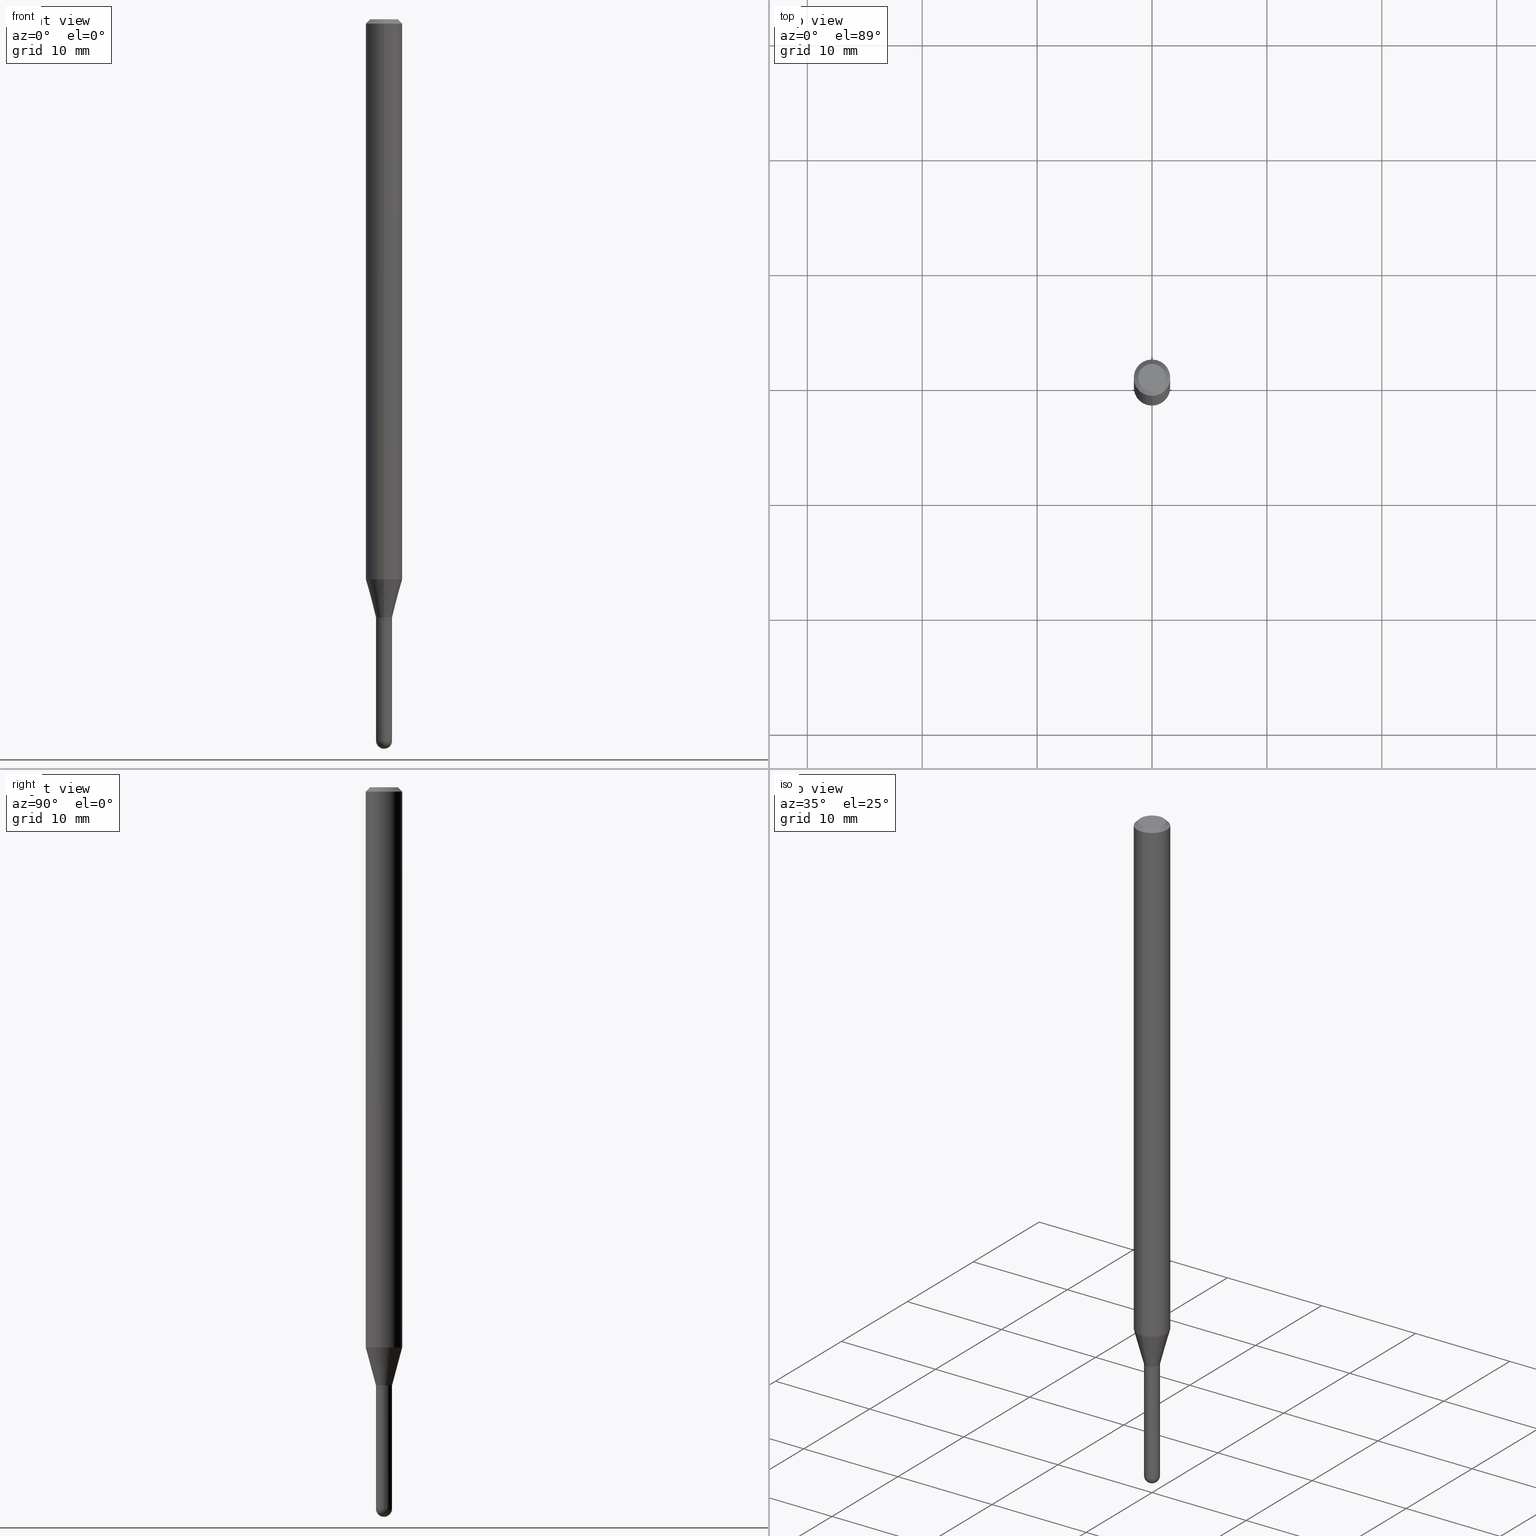
[diagram: canonical four-view strip — front | top / right | iso, engineering-drawing reading convention]
A machine part, canonical four-view strip (front | top / right | iso — engineering-drawing reading convention). The complete STEP part file that produces these views, byte-faithful:
ISO-10303-21;
HEADER;
FILE_DESCRIPTION (( 'STEP AP203' ),
    '1' );
FILE_NAME ('00990.STEP',
    '2024-03-07T19:31:57',
    ( '' ),
    ( '' ),
    'SwSTEP 2.0',
    'SolidWorks 2023',
    '' );
FILE_SCHEMA (( 'CONFIG_CONTROL_DESIGN' ));
ENDSEC;

DATA;
#1 = DIRECTION ( 'NONE',  ( -2.445461654666002137E-29, 3.491491580225585399E-15, 1.000000000000000000 ) ) ;
#2 = FACE_OUTER_BOUND ( 'NONE', #259, .T. ) ;
#3 = CARTESIAN_POINT ( 'NONE',  ( 0.02750000000000000014, -1.920314736363723444E-16, 1.340948613343882413E-30 ) ) ;
#4 = EDGE_CURVE ( 'NONE', #389, #17, #346, .T. ) ;
#5 = AXIS2_PLACEMENT_3D ( 'NONE', #506, #430, #512 ) ;
#6 = CONICAL_SURFACE ( 'NONE', #297, 0.06250000000000000000, 0.7853981633974483900 ) ;
#7 = DIRECTION ( 'NONE',  ( -6.982962677686265922E-15, -1.000000000000000000, 3.491491580225585005E-15 ) ) ;
#8 = CIRCLE ( 'NONE', #231, 0.02750000000000000014 ) ;
#9 = ORIENTED_EDGE ( 'NONE', *, *, #313, .F. ) ;
#10 = DIRECTION ( 'NONE',  ( -2.445461654666002137E-29, 3.491491580225585399E-15, 1.000000000000000000 ) ) ;
#11 = DIRECTION ( 'NONE',  ( 6.982962677686265922E-15, 1.000000000000000000, -3.491491580225585005E-15 ) ) ;
#12 = EDGE_CURVE ( 'NONE', #130, #22, #201, .T. ) ;
#13 = FACE_OUTER_BOUND ( 'NONE', #257, .T. ) ;
#14 = LINE ( 'NONE', #407, #180 ) ;
#15 = EDGE_LOOP ( 'NONE', ( #220, #420, #274, #495 ) ) ;
#16 = DIRECTION ( 'NONE',  ( 6.982962677686265922E-15, 1.000000000000000000, 0.000000000000000000 ) ) ;
#17 = VERTEX_POINT ( 'NONE', #269 ) ;
#18 = AXIS2_PLACEMENT_3D ( 'NONE', #472, #323, #279 ) ;
#19 = APPROVAL_PERSON_ORGANIZATION ( #159, #408, #508 ) ;
#20 = CARTESIAN_POINT ( 'NONE',  ( 0.000000000000000000, 0.000000000000000000, 0.000000000000000000 ) ) ;
#21 = CALENDAR_DATE ( 2024, 7, 3 ) ;
#22 = VERTEX_POINT ( 'NONE', #273 ) ;
#23 = DIRECTION ( 'NONE',  ( -1.000000000000000000, 7.105427357601001070E-15, -4.926315508542082329E-29 ) ) ;
#24 = EDGE_CURVE ( 'NONE', #290, #87, #341, .T. ) ;
#25 = VERTEX_POINT ( 'NONE', #310 ) ;
#26 = LINE ( 'NONE', #66, #394 ) ;
#27 = LOCAL_TIME ( 14, 31, 57.00000000000000000, #363 ) ;
#28 = VERTEX_POINT ( 'NONE', #120 ) ;
#29 = VERTEX_POINT ( 'NONE', #45 ) ;
#30 = CARTESIAN_POINT ( 'NONE',  ( 4.440892098501092576E-16, 0.06249999999999326927, -1.919378221735088985 ) ) ;
#31 = ADVANCED_FACE ( 'NONE', ( #160 ), #342, .T. ) ;
#32 = UNCERTAINTY_MEASURE_WITH_UNIT (LENGTH_MEASURE( 1.000000000000000082E-05 ), #379, 'distance_accuracy_value', 'NONE');
#33 = EDGE_CURVE ( 'NONE', #144, #500, #44, .T. ) ;
#34 = CARTESIAN_POINT ( 'NONE',  ( 3.668192481999005413E-31, -5.237237370338381057E-17, -0.01500000000000000812 ) ) ;
#35 = APPLICATION_CONTEXT ( 'configuration controlled 3d designs of mechanical parts and assemblies' ) ;
#36 = PRODUCT_DEFINITION_SHAPE ( 'NONE', 'NONE',  #338 ) ;
#37 = AXIS2_PLACEMENT_3D ( 'NONE', #133, #441, #93 ) ;
#38 = CONICAL_SURFACE ( 'NONE', #78, 0.06250000000000000000, 0.7853981633974483900 ) ;
#39 = CALENDAR_DATE ( 2024, 7, 3 ) ;
#40 = DIRECTION ( 'NONE',  ( -2.445468806185136597E-29, 3.491481338843145583E-15, 1.000000000000000000 ) ) ;
#41 = ORIENTED_EDGE ( 'NONE', *, *, #501, .T. ) ;
#42 = DIRECTION ( 'NONE',  ( -4.937700262164674260E-15, -0.7071067811865632269, 0.7071067811865319186 ) ) ;
#43 = VECTOR ( 'NONE', #397, 39.37007874015748143 ) ;
#44 = CIRCLE ( 'NONE', #334, 0.06250000000000000000 ) ;
#45 = CARTESIAN_POINT ( 'NONE',  ( 3.840629472727447874E-16, 0.04749999999999999362, -1.747056831868805136E-16 ) ) ;
#46 = APPROVAL ( #196, 'UNSPECIFIED' ) ;
#47 = CARTESIAN_POINT ( 'NONE',  ( 5.013196392065305278E-29, -7.157557739462450364E-15, -2.050000000000000266 ) ) ;
#48 = CARTESIAN_POINT ( 'NONE',  ( 5.036428277784631998E-29, -7.190726909474592369E-15, -2.059500000000000330 ) ) ;
#49 = DIRECTION ( 'NONE',  ( 2.445461654666002137E-29, -3.491491580225585399E-15, -1.000000000000000000 ) ) ;
#50 = MANIFOLD_SOLID_BREP ( 'Body-Move/Copy2[1]', #187 ) ;
#51 = AXIS2_PLACEMENT_3D ( 'NONE', #102, #329, #11 ) ;
#52 = CARTESIAN_POINT ( 'NONE',  ( 5.013196392065305278E-29, -7.157557739462450364E-15, -2.050000000000000266 ) ) ;
#53 = CARTESIAN_POINT ( 'NONE',  ( -1.920314736363698792E-16, -0.02749999999999964972, 9.601601845620238313E-17 ) ) ;
#54 = ORIENTED_EDGE ( 'NONE', *, *, #303, .T. ) ;
#55 = CC_DESIGN_PERSON_AND_ORGANIZATION_ASSIGNMENT ( #354, #217, ( #422 ) ) ;
#56 = LINE ( 'NONE', #53, #263 ) ;
#57 = ORIENTED_EDGE ( 'NONE', *, *, #296, .T. ) ;
#58 = DIRECTION ( 'NONE',  ( -6.982962677686266711E-15, -1.000000000000000000, 0.000000000000000000 ) ) ;
#59 = EDGE_LOOP ( 'NONE', ( #490, #41, #427, #107 ) ) ;
#60 = ORIENTED_EDGE ( 'NONE', *, *, #143, .T. ) ;
#61 = FACE_OUTER_BOUND ( 'NONE', #167, .T. ) ;
#62 = LOCAL_TIME ( 14, 31, 57.00000000000000000, #428 ) ;
#63 = EDGE_LOOP ( 'NONE', ( #482, #456 ) ) ;
#64 = EDGE_CURVE ( 'NONE', #25, #300, #493, .T. ) ;
#65 = DIRECTION ( 'NONE',  ( -1.807323732225330139E-15, -0.2588190451025181860, 0.9659258262890689783 ) ) ;
#66 = CARTESIAN_POINT ( 'NONE',  ( -1.920314736363197372E-16, -0.02750000000000681066, -2.050000000000000266 ) ) ;
#67 = ORIENTED_EDGE ( 'NONE', *, *, #183, .F. ) ;
#68 =( LENGTH_UNIT ( ) NAMED_UNIT ( * ) SI_UNIT ( $, .METRE. ) );
#69 = MANIFOLD_SOLID_BREP ( 'Body-Move/Copy2[2]', #366 ) ;
#70 = DIRECTION ( 'NONE',  ( -2.445461654666002137E-29, 3.491491580225585399E-15, 1.000000000000000000 ) ) ;
#71 = ADVANCED_FACE ( 'NONE', ( #163 ), #509, .T. ) ;
#72 = CIRCLE ( 'NONE', #505, 0.02750000000000000014 ) ;
#73 = ADVANCED_FACE ( 'NONE', ( #169 ), #403, .F. ) ;
#74 = ORIENTED_EDGE ( 'NONE', *, *, #218, .T. ) ;
#75 = DIRECTION ( 'NONE',  ( -6.982962677686266711E-15, -1.000000000000000000, 3.491491580225585793E-15 ) ) ;
#76 = CALENDAR_DATE ( 2024, 7, 3 ) ;
#77 = CIRCLE ( 'NONE', #148, 0.06250000000000000000 ) ;
#78 = AXIS2_PLACEMENT_3D ( 'NONE', #34, #371, #331 ) ;
#79 = APPROVAL_ROLE ( '' ) ;
#80 = DIRECTION ( 'NONE',  ( -6.982962677686265133E-15, -1.000000000000000000, 0.000000000000000000 ) ) ;
#81 = PERSON_AND_ORGANIZATION ( #433, #487 ) ;
#82 = EDGE_LOOP ( 'NONE', ( #412, #142, #118, #90 ) ) ;
#83 = ADVANCED_FACE ( 'NONE', ( #480 ), #305, .T. ) ;
#84 = CC_DESIGN_DATE_AND_TIME_ASSIGNMENT ( #153, #372, ( #422 ) ) ;
#85 = VECTOR ( 'NONE', #406, 39.37007874015748143 ) ;
#86 = AXIS2_PLACEMENT_3D ( 'NONE', #104, #190, #228 ) ;
#87 = VERTEX_POINT ( 'NONE', #446 ) ;
#88 = CARTESIAN_POINT ( 'NONE',  ( -4.364351673553448308E-16, -0.06250000000000671685, -1.919378221735088319 ) ) ;
#89 = DIRECTION ( 'NONE',  ( -6.982962677686266711E-15, -1.000000000000000000, 3.491491580225585793E-15 ) ) ;
#90 = ORIENTED_EDGE ( 'NONE', *, *, #302, .F. ) ;
#91 = CYLINDRICAL_SURFACE ( 'NONE', #286, 0.02750000000000000014 ) ;
#92 = DIRECTION ( 'NONE',  ( -2.445468806185136877E-29, 3.491481338843145188E-15, 1.000000000000000000 ) ) ;
#93 = DIRECTION ( 'NONE',  ( -6.982962677686266711E-15, -1.000000000000000000, 3.491491580225585793E-15 ) ) ;
#94 = DIRECTION ( 'NONE',  ( -2.445461654666002137E-29, 3.491491580225585399E-15, 1.000000000000000000 ) ) ;
#95 = DIRECTION ( 'NONE',  ( 1.000000000000000000, -6.982962677686279332E-15, 0.000000000000000000 ) ) ;
#96 = CARTESIAN_POINT ( 'NONE',  ( 3.668192481999005413E-31, -5.237237370338381057E-17, -0.01500000000000000812 ) ) ;
#97 = VECTOR ( 'NONE', #502, 39.37007874015748143 ) ;
#98 = CARTESIAN_POINT ( 'NONE',  ( 1.936228954946764066E-16, 0.02699999999999280753, -2.060000000000000053 ) ) ;
#99 = CARTESIAN_POINT ( 'NONE',  ( -1.885399922974788009E-16, -0.02700000000000719186, -2.060000000000000053 ) ) ;
#100 = VERTEX_POINT ( 'NONE', #435 ) ;
#101 = LENGTH_MEASURE_WITH_UNIT ( LENGTH_MEASURE( 0.02539999999999999897 ), #68 );
#102 = CARTESIAN_POINT ( 'NONE',  ( 3.316907271900976096E-16, 0.04749999999999999362, -1.702757666237978953E-16 ) ) ;
#103 = ADVANCED_FACE ( 'NONE', ( #314 ), #254, .T. ) ;
#104 = CARTESIAN_POINT ( 'NONE',  ( 5.036428277784631998E-29, -7.190726909474592369E-15, -2.059500000000000330 ) ) ;
#105 = AXIS2_PLACEMENT_3D ( 'NONE', #255, #243, #215 ) ;
#106 = APPROVAL_PERSON_ORGANIZATION ( #198, #46, #79 ) ;
#107 = ORIENTED_EDGE ( 'NONE', *, *, #24, .F. ) ;
#108 = LINE ( 'NONE', #375, #97 ) ;
#109 = SHAPE_DEFINITION_REPRESENTATION ( #36, #221 ) ;
#110 = CYLINDRICAL_SURFACE ( 'NONE', #368, 0.06250000000000000000 ) ;
#111 = EDGE_CURVE ( 'NONE', #504, #380, #466, .T. ) ;
#112 = DIRECTION ( 'NONE',  ( 1.000000000000000000, -6.982962677686279332E-15, 0.000000000000000000 ) ) ;
#113 = AXIS2_PLACEMENT_3D ( 'NONE', #48, #319, #479 ) ;
#114 = AXIS2_PLACEMENT_3D ( 'NONE', #492, #458, #188 ) ;
#115 = DIRECTION ( 'NONE',  ( 0.000000000000000000, 0.000000000000000000, 1.000000000000000000 ) ) ;
#116 = APPROVAL_STATUS ( 'not_yet_approved' ) ;
#117 = DIRECTION ( 'NONE',  ( -2.445461654666002137E-29, 3.491491580225585399E-15, 1.000000000000000000 ) ) ;
#118 = ORIENTED_EDGE ( 'NONE', *, *, #332, .F. ) ;
#119 = ADVANCED_FACE ( 'NONE', ( #13 ), #91, .T. ) ;
#120 = CARTESIAN_POINT ( 'NONE',  ( 6.112496161815219763E-29, -8.730387236456691573E-15, -2.500000000000000000 ) ) ;
#121 = VECTOR ( 'NONE', #330, 39.37007874015748143 ) ;
#122 = AXIS2_PLACEMENT_3D ( 'NONE', #335, #455, #75 ) ;
#123 = PERSON_AND_ORGANIZATION ( #433, #487 ) ;
#124 = ORIENTED_EDGE ( 'NONE', *, *, #370, .T. ) ;
#125 = ADVANCED_FACE ( 'NONE', ( #2 ), #360, .F. ) ;
#126 = DIRECTION ( 'NONE',  ( 5.024295867788190974E-15, 0.7071067811865681119, 0.7071067811865270336 ) ) ;
#127 = ADVANCED_FACE ( 'NONE', ( #173 ), #311, .T. ) ;
#128 = DIRECTION ( 'NONE',  ( -6.982962677686265922E-15, -1.000000000000000000, 3.483106191921935554E-15 ) ) ;
#129 = AXIS2_PLACEMENT_3D ( 'NONE', #237, #40, #385 ) ;
#130 = VERTEX_POINT ( 'NONE', #98 ) ;
#131 = CARTESIAN_POINT ( 'NONE',  ( 4.693765842054179356E-29, -6.701492900456418580E-15, -1.919378221735088763 ) ) ;
#132 = DIRECTION ( 'NONE',  ( -2.445461654666002137E-29, 3.491491580225585399E-15, 1.000000000000000000 ) ) ;
#133 = CARTESIAN_POINT ( 'NONE',  ( 0.000000000000000000, 0.000000000000000000, 0.000000000000000000 ) ) ;
#134 = DIRECTION ( 'NONE',  ( -1.000000000000000000, 6.982962677686265922E-15, -4.883557194083112901E-29 ) ) ;
#135 = LINE ( 'NONE', #284, #121 ) ;
#136 = CARTESIAN_POINT ( 'NONE',  ( 3.197442310920924528E-16, 0.02749999999999249226, -2.050000000000000266 ) ) ;
#137 = EDGE_LOOP ( 'NONE', ( #57, #369 ) ) ;
#138 = AXIS2_PLACEMENT_3D ( 'NONE', #214, #443, #7 ) ;
#139 = DIRECTION ( 'NONE',  ( -1.000000000000000000, 6.982962677686265922E-15, -4.876176775795935793E-29 ) ) ;
#140 = LINE ( 'NONE', #289, #43 ) ;
#141 = CIRCLE ( 'NONE', #122, 0.04749999999999999362 ) ;
#142 = ORIENTED_EDGE ( 'NONE', *, *, #349, .T. ) ;
#143 = EDGE_CURVE ( 'NONE', #144, #504, #247, .T. ) ;
#144 = VERTEX_POINT ( 'NONE', #88 ) ;
#145 = CARTESIAN_POINT ( 'NONE',  ( 6.046421623292748621E-29, -8.632687610289675147E-15, -2.472499999999999254 ) ) ;
#146 = PLANE ( 'NONE',  #51 ) ;
#147 = ORIENTED_EDGE ( 'NONE', *, *, #390, .F. ) ;
#148 = AXIS2_PLACEMENT_3D ( 'NONE', #96, #485, #364 ) ;
#149 = AXIS2_PLACEMENT_3D ( 'NONE', #260, #70, #496 ) ;
#150 = CC_DESIGN_PERSON_AND_ORGANIZATION_ASSIGNMENT ( #271, #431, ( #511 ) ) ;
#151 = FACE_OUTER_BOUND ( 'NONE', #15, .T. ) ;
#152 = SPHERICAL_SURFACE ( 'NONE', #203, 0.02750000000000009381 ) ;
#153 = DATE_AND_TIME ( #450, #182 ) ;
#154 = ORIENTED_EDGE ( 'NONE', *, *, #313, .T. ) ;
#155 = ORIENTED_EDGE ( 'NONE', *, *, #111, .F. ) ;
#156 = DESIGN_CONTEXT ( 'detailed design', #35, 'design' ) ;
#157 = DIRECTION ( 'NONE',  ( -2.445461654666002137E-29, 3.491491580225585399E-15, 1.000000000000000000 ) ) ;
#158 = DIRECTION ( 'NONE',  ( -2.445461654666002137E-29, 3.491491580225585399E-15, 1.000000000000000000 ) ) ;
#159 = PERSON_AND_ORGANIZATION ( #433, #487 ) ;
#160 = FACE_OUTER_BOUND ( 'NONE', #213, .T. ) ;
#161 = EDGE_LOOP ( 'NONE', ( #498, #344, #60, #147 ) ) ;
#162 = CALENDAR_DATE ( 2024, 7, 3 ) ;
#163 = FACE_OUTER_BOUND ( 'NONE', #232, .T. ) ;
#164 = ORIENTED_EDGE ( 'NONE', *, *, #64, .F. ) ;
#165 = ORIENTED_EDGE ( 'NONE', *, *, #417, .T. ) ;
#166 = EDGE_CURVE ( 'NONE', #500, #144, #276, .T. ) ;
#167 = EDGE_LOOP ( 'NONE', ( #318, #172, #336, #387 ) ) ;
#168 = CARTESIAN_POINT ( 'NONE',  ( -4.364351673553916201E-16, -0.06250000000000000000, 2.182182237640990874E-16 ) ) ;
#169 = FACE_OUTER_BOUND ( 'NONE', #63, .T. ) ;
#170 = DIRECTION ( 'NONE',  ( -2.445461654666002417E-29, 3.491491580225585005E-15, 1.000000000000000000 ) ) ;
#171 = AXIS2_PLACEMENT_3D ( 'NONE', #355, #438, #128 ) ;
#172 = ORIENTED_EDGE ( 'NONE', *, *, #391, .T. ) ;
#173 = FACE_OUTER_BOUND ( 'NONE', #227, .T. ) ;
#174 = CARTESIAN_POINT ( 'NONE',  ( -1.920314736363197372E-16, -0.02750000000000681066, -2.050000000000000266 ) ) ;
#175 = EDGE_LOOP ( 'NONE', ( #409, #246, #199, #339 ) ) ;
#176 = CARTESIAN_POINT ( 'NONE',  ( 0.000000000000000000, 0.000000000000000000, 0.000000000000000000 ) ) ;
#177 = CARTESIAN_POINT ( 'NONE',  ( 1.920314736364227082E-16, 0.02749999999999280798, -2.060000000000000053 ) ) ;
#178 = DIRECTION ( 'NONE',  ( 6.982962677686265922E-15, 1.000000000000000000, -3.483106191921935554E-15 ) ) ;
#179 = EDGE_LOOP ( 'NONE', ( #233, #507, #437, #67 ) ) ;
#180 = VECTOR ( 'NONE', #170, 39.37007874015748143 ) ;
#181 = EDGE_CURVE ( 'NONE', #377, #100, #72, .T. ) ;
#182 = LOCAL_TIME ( 14, 31, 57.00000000000000000, #291 ) ;
#183 = EDGE_CURVE ( 'NONE', #22, #17, #238, .T. ) ;
#184 = ORIENTED_EDGE ( 'NONE', *, *, #33, .T. ) ;
#185 = DIRECTION ( 'NONE',  ( 6.982962677686265922E-15, 1.000000000000000000, 0.000000000000000000 ) ) ;
#186 = ORIENTED_EDGE ( 'NONE', *, *, #33, .F. ) ;
#187 = CLOSED_SHELL ( 'NONE', ( #119, #376, #125, #440, #71 ) ) ;
#188 = DIRECTION ( 'NONE',  ( -6.982962677686266711E-15, -1.000000000000000000, 0.000000000000000000 ) ) ;
#189 = ORIENTED_EDGE ( 'NONE', *, *, #321, .F. ) ;
#190 = DIRECTION ( 'NONE',  ( -2.445461654666002137E-29, 3.491491580225585399E-15, 1.000000000000000000 ) ) ;
#191 = PERSON_AND_ORGANIZATION ( #433, #487 ) ;
#192 = PRODUCT_RELATED_PRODUCT_CATEGORY ( 'detail', '', ( #195 ) ) ;
#193 = ORIENTED_EDGE ( 'NONE', *, *, #64, .T. ) ;
#194 = COORDINATED_UNIVERSAL_TIME_OFFSET ( 5, 0, .BEHIND. ) ;
#195 = PRODUCT ( '00990', '00990', '', ( #463 ) ) ;
#196 = APPROVAL_STATUS ( 'not_yet_approved' ) ;
#197 = ADVANCED_FACE ( 'NONE', ( #312 ), #351, .T. ) ;
#198 = PERSON_AND_ORGANIZATION ( #433, #487 ) ;
#199 = ORIENTED_EDGE ( 'NONE', *, *, #111, .T. ) ;
#200 = CYLINDRICAL_SURFACE ( 'NONE', #357, 0.02749999999999964972 ) ;
#201 = LINE ( 'NONE', #393, #223 ) ;
#202 = CIRCLE ( 'NONE', #411, 0.02699999999999999969 ) ;
#203 = AXIS2_PLACEMENT_3D ( 'NONE', #423, #226, #261 ) ;
#204 = SECURITY_CLASSIFICATION_LEVEL ( 'unclassified' ) ;
#205 = CARTESIAN_POINT ( 'NONE',  ( 5.037651008611964246E-29, -7.192472655264704857E-15, -2.060000000000000053 ) ) ;
#206 = CARTESIAN_POINT ( 'NONE',  ( 5.013196392065305278E-29, -7.157557739462450364E-15, -2.050000000000000266 ) ) ;
#207 = EDGE_LOOP ( 'NONE', ( #328, #154, #186, #381 ) ) ;
#208 = AXIS2_PLACEMENT_3D ( 'NONE', #327, #489, #185 ) ;
#209 = CIRCLE ( 'NONE', #114, 0.02749999999999964972 ) ;
#210 = CARTESIAN_POINT ( 'NONE',  ( 5.037651008611964246E-29, -7.192472655264704857E-15, -2.060000000000000053 ) ) ;
#211 = CARTESIAN_POINT ( 'NONE',  ( -4.287811248607203282E-16, -0.06250000000000005551, -0.01499999999999979128 ) ) ;
#212 = ORIENTED_EDGE ( 'NONE', *, *, #425, .T. ) ;
#213 = EDGE_LOOP ( 'NONE', ( #497, #272, #415, #451 ) ) ;
#214 = CARTESIAN_POINT ( 'NONE',  ( 5.037651008611964246E-29, -7.192472655264704857E-15, -2.060000000000000053 ) ) ;
#215 = DIRECTION ( 'NONE',  ( 1.000000000000000000, -6.982962677686279332E-15, 0.000000000000000000 ) ) ;
#216 = EDGE_CURVE ( 'NONE', #130, #389, #202, .T. ) ;
#217 = PERSON_AND_ORGANIZATION_ROLE ( 'classification_officer' ) ;
#218 = EDGE_CURVE ( 'NONE', #87, #300, #135, .T. ) ;
#219 = FACE_OUTER_BOUND ( 'NONE', #224, .T. ) ;
#220 = ORIENTED_EDGE ( 'NONE', *, *, #349, .F. ) ;
#221 = ADVANCED_BREP_SHAPE_REPRESENTATION ( '00990', ( #50, #69, #445 ), #225 ) ;
#222 = DIRECTION ( 'NONE',  ( -6.982962677686266711E-15, -1.000000000000000000, 3.491491580225585793E-15 ) ) ;
#223 = VECTOR ( 'NONE', #126, 39.37007874015748143 ) ;
#224 = EDGE_LOOP ( 'NONE', ( #189, #229, #418, #345 ) ) ;
#225 =( GEOMETRIC_REPRESENTATION_CONTEXT ( 3 ) GLOBAL_UNCERTAINTY_ASSIGNED_CONTEXT ( ( #32 ) ) GLOBAL_UNIT_ASSIGNED_CONTEXT ( ( #379, #337, #301 ) ) REPRESENTATION_CONTEXT ( 'NONE', 'WORKASPACE' ) );
#226 = DIRECTION ( 'NONE',  ( -1.000000000000000000, 6.982962677686265922E-15, -4.883557194083112901E-29 ) ) ;
#227 = EDGE_LOOP ( 'NONE', ( #9, #165, #470, #471 ) ) ;
#228 = DIRECTION ( 'NONE',  ( -6.982962677686266711E-15, -1.000000000000000000, 0.000000000000000000 ) ) ;
#229 = ORIENTED_EDGE ( 'NONE', *, *, #296, .F. ) ;
#230 = AXIS2_PLACEMENT_3D ( 'NONE', #205, #158, #80 ) ;
#231 = AXIS2_PLACEMENT_3D ( 'NONE', #145, #452, #264 ) ;
#232 = EDGE_LOOP ( 'NONE', ( #478, #400, #359, #124, #309 ) ) ;
#233 = ORIENTED_EDGE ( 'NONE', *, *, #12, .F. ) ;
#234 = ADVANCED_FACE ( 'NONE', ( #151 ), #200, .T. ) ;
#235 = DATE_AND_TIME ( #76, #62 ) ;
#236 = VECTOR ( 'NONE', #42, 39.37007874015748143 ) ;
#237 = CARTESIAN_POINT ( 'NONE',  ( 5.037665740741381905E-29, -7.192451558016880271E-15, -2.060000000000000053 ) ) ;
#238 = CIRCLE ( 'NONE', #113, 0.02749999999999964972 ) ;
#239 = CC_DESIGN_PERSON_AND_ORGANIZATION_ASSIGNMENT ( #191, #308, ( #195 ) ) ;
#240 = PERSON_AND_ORGANIZATION_ROLE ( 'design_supplier' ) ;
#241 = CC_DESIGN_APPROVAL ( #384, ( #422 ) ) ;
#242 = CARTESIAN_POINT ( 'NONE',  ( 6.046421623292748621E-29, -8.632687610289675147E-15, -2.472499999999999254 ) ) ;
#243 = DIRECTION ( 'NONE',  ( -2.445468806185136597E-29, 3.491481338843145583E-15, 1.000000000000000000 ) ) ;
#244 = CC_DESIGN_DATE_AND_TIME_ASSIGNMENT ( #235, #383, ( #338 ) ) ;
#245 = DIRECTION ( 'NONE',  ( -6.982962677686265922E-15, -1.000000000000000000, 4.370956789862821150E-15 ) ) ;
#246 = ORIENTED_EDGE ( 'NONE', *, *, #321, .T. ) ;
#247 = LINE ( 'NONE', #168, #85 ) ;
#248 = EDGE_LOOP ( 'NONE', ( #184, #320, #155, #292 ) ) ;
#249 = AXIS2_PLACEMENT_3D ( 'NONE', #362, #398, #352 ) ;
#250 = CIRCLE ( 'NONE', #298, 0.02750000000000009381 ) ;
#251 = DIRECTION ( 'NONE',  ( 1.000000000000000000, -6.982962677686266711E-15, 4.876176775795935793E-29 ) ) ;
#252 = LINE ( 'NONE', #404, #316 ) ;
#253 = ADVANCED_FACE ( 'NONE', ( #488 ), #146, .F. ) ;
#254 = CYLINDRICAL_SURFACE ( 'NONE', #249, 0.06250000000000000000 ) ;
#255 = CARTESIAN_POINT ( 'NONE',  ( 5.037665740741381905E-29, -7.192451558016880271E-15, -2.060000000000000053 ) ) ;
#256 = DIRECTION ( 'NONE',  ( -2.445461654666002137E-29, 3.491491580225585399E-15, 1.000000000000000000 ) ) ;
#257 = EDGE_LOOP ( 'NONE', ( #473, #74, #164, #469, #212 ) ) ;
#258 = FACE_OUTER_BOUND ( 'NONE', #179, .T. ) ;
#259 = EDGE_LOOP ( 'NONE', ( #193, #54 ) ) ;
#260 = CARTESIAN_POINT ( 'NONE',  ( 5.037651008611964246E-29, -7.192472655264704857E-15, -2.060000000000000053 ) ) ;
#261 = DIRECTION ( 'NONE',  ( 6.982962677686265922E-15, 1.000000000000000000, 0.000000000000000000 ) ) ;
#262 = VERTEX_POINT ( 'NONE', #174 ) ;
#263 = VECTOR ( 'NONE', #361, 39.37007874015748143 ) ;
#264 = DIRECTION ( 'NONE',  ( 1.000000000000000000, -6.982962677686279332E-15, 0.000000000000000000 ) ) ;
#265 = CC_DESIGN_SECURITY_CLASSIFICATION ( #422, ( #511 ) ) ;
#266 = EDGE_CURVE ( 'NONE', #500, #380, #252, .T. ) ;
#267 = DIRECTION ( 'NONE',  ( 1.000000000000000000, 0.000000000000000000, 0.000000000000000000 ) ) ;
#268 = COORDINATED_UNIVERSAL_TIME_OFFSET ( 5, 0, .BEHIND. ) ;
#269 = CARTESIAN_POINT ( 'NONE',  ( -1.920314736363201563E-16, -0.02750000000000693903, -2.059500000000000330 ) ) ;
#270 = AXIS2_PLACEMENT_3D ( 'NONE', #47, #1, #58 ) ;
#271 = PERSON_AND_ORGANIZATION ( #433, #487 ) ;
#272 = ORIENTED_EDGE ( 'NONE', *, *, #12, .T. ) ;
#273 = CARTESIAN_POINT ( 'NONE',  ( 1.953992523340747112E-16, 0.02749999999999236389, -2.059500000000000330 ) ) ;
#274 = ORIENTED_EDGE ( 'NONE', *, *, #302, .T. ) ;
#275 = DIRECTION ( 'NONE',  ( -6.982962677686266711E-15, -1.000000000000000000, 0.000000000000000000 ) ) ;
#276 = CIRCLE ( 'NONE', #434, 0.06250000000000000000 ) ;
#277 = LOCAL_TIME ( 14, 31, 57.00000000000000000, #268 ) ;
#278 = CC_DESIGN_PERSON_AND_ORGANIZATION_ASSIGNMENT ( #123, #424, ( #338 ) ) ;
#279 = DIRECTION ( 'NONE',  ( 1.000000000000000000, -6.982962677686266711E-15, 4.876176775795935793E-29 ) ) ;
#280 = LINE ( 'NONE', #3, #459 ) ;
#281 = DIRECTION ( 'NONE',  ( -2.445468806185136597E-29, 3.491481338843145583E-15, 1.000000000000000000 ) ) ;
#282 = CARTESIAN_POINT ( 'NONE',  ( -1.953992523339674261E-16, -0.02750000000000868070, -2.472499999999999254 ) ) ;
#283 = CC_DESIGN_PERSON_AND_ORGANIZATION_ASSIGNMENT ( #81, #240, ( #511 ) ) ;
#284 = CARTESIAN_POINT ( 'NONE',  ( -0.02750000000000000014, 1.953992523340275521E-16, -1.352707149820099181E-30 ) ) ;
#285 = FACE_OUTER_BOUND ( 'NONE', #59, .T. ) ;
#286 = AXIS2_PLACEMENT_3D ( 'NONE', #176, #395, #251 ) ;
#287 = CC_DESIGN_APPROVAL ( #46, ( #511 ) ) ;
#288 = DIRECTION ( 'NONE',  ( -2.445461654666002137E-29, 3.491491580225585399E-15, 1.000000000000000000 ) ) ;
#289 = CARTESIAN_POINT ( 'NONE',  ( 1.953992523340751796E-16, 0.02749999999999249226, -2.050000000000000266 ) ) ;
#290 = VERTEX_POINT ( 'NONE', #442 ) ;
#291 = COORDINATED_UNIVERSAL_TIME_OFFSET ( 5, 0, .BEHIND. ) ;
#292 = ORIENTED_EDGE ( 'NONE', *, *, #143, .F. ) ;
#293 = DIRECTION ( 'NONE',  ( -6.982962677686265922E-15, -1.000000000000000000, 3.491491580225585399E-15 ) ) ;
#294 = CARTESIAN_POINT ( 'NONE',  ( 6.046421623292748621E-29, -8.632687610289675147E-15, -2.472499999999999254 ) ) ;
#295 = DATE_AND_TIME ( #21, #27 ) ;
#296 = EDGE_CURVE ( 'NONE', #29, #464, #486, .T. ) ;
#297 = AXIS2_PLACEMENT_3D ( 'NONE', #475, #49, #178 ) ;
#298 = AXIS2_PLACEMENT_3D ( 'NONE', #373, #23, #299 ) ;
#299 = DIRECTION ( 'NONE',  ( -7.105427357601001070E-15, -1.000000000000000000, 0.000000000000000000 ) ) ;
#300 = VERTEX_POINT ( 'NONE', #315 ) ;
#301 =( NAMED_UNIT ( * ) SI_UNIT ( $, .STERADIAN. ) SOLID_ANGLE_UNIT ( ) );
#302 = EDGE_CURVE ( 'NONE', #17, #262, #56, .T. ) ;
#303 = EDGE_CURVE ( 'NONE', #300, #25, #348, .T. ) ;
#304 = CARTESIAN_POINT ( 'NONE',  ( 0.000000000000000000, 0.000000000000000000, 0.000000000000000000 ) ) ;
#305 = CONICAL_SURFACE ( 'NONE', #270, 0.02749999999999964972, 0.2617993877991502960 ) ;
#306 = AXIS2_PLACEMENT_3D ( 'NONE', #413, #157, #416 ) ;
#307 = CARTESIAN_POINT ( 'NONE',  ( 4.693765842054179356E-29, -6.701492900456418580E-15, -1.919378221735088763 ) ) ;
#308 = PERSON_AND_ORGANIZATION_ROLE ( 'design_owner' ) ;
#309 = ORIENTED_EDGE ( 'NONE', *, *, #303, .F. ) ;
#310 = CARTESIAN_POINT ( 'NONE',  ( 0.02750000000000000014, -7.384483031653253552E-15, -2.060000000000000053 ) ) ;
#311 = CONICAL_SURFACE ( 'NONE', #421, 0.02749999999999964972, 0.2617993877991502960 ) ;
#312 = FACE_OUTER_BOUND ( 'NONE', #82, .T. ) ;
#313 = EDGE_CURVE ( 'NONE', #365, #500, #140, .T. ) ;
#314 = FACE_OUTER_BOUND ( 'NONE', #161, .T. ) ;
#315 = CARTESIAN_POINT ( 'NONE',  ( -0.02750000000000000014, -7.717170331819249590E-15, -2.060000000000000053 ) ) ;
#316 = VECTOR ( 'NONE', #399, 39.37007874015748143 ) ;
#317 = DIMENSIONAL_EXPONENTS ( 1.000000000000000000, 0.000000000000000000, 0.000000000000000000, 0.000000000000000000, 0.000000000000000000, 0.000000000000000000, 0.000000000000000000 ) ;
#318 = ORIENTED_EDGE ( 'NONE', *, *, #501, .F. ) ;
#319 = DIRECTION ( 'NONE',  ( -2.445461654666002137E-29, 3.491491580225585399E-15, 1.000000000000000000 ) ) ;
#320 = ORIENTED_EDGE ( 'NONE', *, *, #266, .T. ) ;
#321 = EDGE_CURVE ( 'NONE', #464, #504, #481, .T. ) ;
#322 = DIRECTION ( 'NONE',  ( -6.982962677686265133E-15, -1.000000000000000000, 0.000000000000000000 ) ) ;
#323 = DIRECTION ( 'NONE',  ( -2.445468806185136597E-29, 3.491481338843145583E-15, 1.000000000000000000 ) ) ;
#324 = CARTESIAN_POINT ( 'NONE',  ( 4.440892098501098492E-16, 0.06249999999999995143, -0.01500000000000022669 ) ) ;
#325 = VECTOR ( 'NONE', #447, 39.37007874015748143 ) ;
#326 = CIRCLE ( 'NONE', #468, 0.02750000000000000014 ) ;
#327 = CARTESIAN_POINT ( 'NONE',  ( 6.044069915997506284E-29, -8.636055388987333140E-15, -2.472500000000000142 ) ) ;
#328 = ORIENTED_EDGE ( 'NONE', *, *, #332, .T. ) ;
#329 = DIRECTION ( 'NONE',  ( 2.445461654666002137E-29, -3.491491580225585005E-15, -1.000000000000000000 ) ) ;
#330 = DIRECTION ( 'NONE',  ( -2.445468806185136877E-29, 3.491481338843145188E-15, 1.000000000000000000 ) ) ;
#331 = DIRECTION ( 'NONE',  ( 6.982962677686265922E-15, 1.000000000000000000, -3.483106191921935554E-15 ) ) ;
#332 = EDGE_CURVE ( 'NONE', #262, #365, #392, .T. ) ;
#333 = APPROVAL_STATUS ( 'not_yet_approved' ) ;
#334 = AXIS2_PLACEMENT_3D ( 'NONE', #307, #117, #426 ) ;
#335 = CARTESIAN_POINT ( 'NONE',  ( 2.166638217677665656E-46, -3.093403276220958094E-32, -8.859833126165218279E-18 ) ) ;
#336 = ORIENTED_EDGE ( 'NONE', *, *, #425, .F. ) ;
#337 =( NAMED_UNIT ( * ) PLANE_ANGLE_UNIT ( ) SI_UNIT ( $, .RADIAN. ) );
#338 = PRODUCT_DEFINITION ( 'UNKNOWN', '', #511, #156 ) ;
#339 = ORIENTED_EDGE ( 'NONE', *, *, #449, .F. ) ;
#340 = APPLICATION_PROTOCOL_DEFINITION ( 'international standard', 'config_control_design', 1994, #35 ) ;
#341 = CIRCLE ( 'NONE', #5, 0.02750000000000000014 ) ;
#342 = CONICAL_SURFACE ( 'NONE', #230, 0.02699999999999999969, 0.7853981633974739252 ) ;
#343 = APPROVAL_PERSON_ORGANIZATION ( #414, #384, #374 ) ;
#344 = ORIENTED_EDGE ( 'NONE', *, *, #166, .T. ) ;
#345 = ORIENTED_EDGE ( 'NONE', *, *, #390, .T. ) ;
#346 = LINE ( 'NONE', #510, #236 ) ;
#347 = APPROVAL_DATE_TIME ( #386, #46 ) ;
#348 = CIRCLE ( 'NONE', #105, 0.02750000000000000014 ) ;
#349 = EDGE_CURVE ( 'NONE', #22, #365, #14, .T. ) ;
#350 = ADVANCED_FACE ( 'NONE', ( #219 ), #6, .T. ) ;
#351 = CYLINDRICAL_SURFACE ( 'NONE', #37, 0.02749999999999964972 ) ;
#352 = DIRECTION ( 'NONE',  ( -6.982962677686265922E-15, -1.000000000000000000, 3.491491580225585399E-15 ) ) ;
#353 = DIRECTION ( 'NONE',  ( -6.982962677686266711E-15, -1.000000000000000000, 0.000000000000000000 ) ) ;
#354 = PERSON_AND_ORGANIZATION ( #433, #487 ) ;
#355 = CARTESIAN_POINT ( 'NONE',  ( 3.668192481999005413E-31, -5.237237370338381057E-17, -0.01500000000000000812 ) ) ;
#356 = SPHERICAL_SURFACE ( 'NONE', #378, 0.02750000000000009381 ) ;
#357 = AXIS2_PLACEMENT_3D ( 'NONE', #461, #256, #222 ) ;
#358 = CIRCLE ( 'NONE', #149, 0.02699999999999999969 ) ;
#359 = ORIENTED_EDGE ( 'NONE', *, *, #181, .T. ) ;
#360 = PLANE ( 'NONE',  #367 ) ;
#361 = DIRECTION ( 'NONE',  ( -2.445461654666002417E-29, 3.491491580225585005E-15, 1.000000000000000000 ) ) ;
#362 = CARTESIAN_POINT ( 'NONE',  ( 0.000000000000000000, 0.000000000000000000, 0.000000000000000000 ) ) ;
#363 = COORDINATED_UNIVERSAL_TIME_OFFSET ( 5, 0, .BEHIND. ) ;
#364 = DIRECTION ( 'NONE',  ( -6.982962677686265922E-15, -1.000000000000000000, 3.483106191921935554E-15 ) ) ;
#365 = VERTEX_POINT ( 'NONE', #136 ) ;
#366 = CLOSED_SHELL ( 'NONE', ( #197, #31, #462, #503, #83, #127, #103, #350, #253, #73, #483, #234 ) ) ;
#367 = AXIS2_PLACEMENT_3D ( 'NONE', #177, #474, #139 ) ;
#368 = AXIS2_PLACEMENT_3D ( 'NONE', #20, #419, #293 ) ;
#369 = ORIENTED_EDGE ( 'NONE', *, *, #448, .T. ) ;
#370 = EDGE_CURVE ( 'NONE', #100, #25, #280, .T. ) ;
#371 = DIRECTION ( 'NONE',  ( 2.445461654666002137E-29, -3.491491580225585399E-15, -1.000000000000000000 ) ) ;
#372 = DATE_TIME_ROLE ( 'classification_date' ) ;
#373 = CARTESIAN_POINT ( 'NONE',  ( 6.044069915997506284E-29, -8.636055388987333140E-15, -2.472500000000000142 ) ) ;
#374 = APPROVAL_ROLE ( '' ) ;
#375 = CARTESIAN_POINT ( 'NONE',  ( 4.364351673553919652E-16, 0.06249999999999995143, -0.01500000000000022669 ) ) ;
#376 = ADVANCED_FACE ( 'NONE', ( #285 ), #356, .T. ) ;
#377 = VERTEX_POINT ( 'NONE', #282 ) ;
#378 = AXIS2_PLACEMENT_3D ( 'NONE', #444, #134, #16 ) ;
#379 =( CONVERSION_BASED_UNIT ( 'INCH', #101 ) LENGTH_UNIT ( ) NAMED_UNIT ( #317 ) );
#380 = VERTEX_POINT ( 'NONE', #324 ) ;
#381 = ORIENTED_EDGE ( 'NONE', *, *, #484, .F. ) ;
#382 = APPLICATION_PROTOCOL_DEFINITION ( 'international standard', 'config_control_design', 1994, #405 ) ;
#383 = DATE_TIME_ROLE ( 'creation_date' ) ;
#384 = APPROVAL ( #333, 'UNSPECIFIED' ) ;
#385 = DIRECTION ( 'NONE',  ( 1.000000000000000000, -6.982962677686279332E-15, 0.000000000000000000 ) ) ;
#386 = DATE_AND_TIME ( #162, #460 ) ;
#387 = ORIENTED_EDGE ( 'NONE', *, *, #181, .F. ) ;
#388 = DATE_AND_TIME ( #39, #277 ) ;
#389 = VERTEX_POINT ( 'NONE', #99 ) ;
#390 = EDGE_CURVE ( 'NONE', #380, #504, #77, .T. ) ;
#391 = EDGE_CURVE ( 'NONE', #28, #290, #429, .T. ) ;
#392 = CIRCLE ( 'NONE', #401, 0.02749999999999964972 ) ;
#393 = CARTESIAN_POINT ( 'NONE',  ( 1.918465386552773872E-16, 0.02699999999999280753, -2.060000000000000053 ) ) ;
#394 = VECTOR ( 'NONE', #65, 39.37007874015748143 ) ;
#395 = DIRECTION ( 'NONE',  ( -2.445468806185136597E-29, 3.491481338843145583E-15, 1.000000000000000000 ) ) ;
#396 = DIRECTION ( 'NONE',  ( -2.445461654666002137E-29, 3.491491580225585399E-15, 1.000000000000000000 ) ) ;
#397 = DIRECTION ( 'NONE',  ( 1.839019923739600315E-15, 0.2588190451025249583, 0.9659258262890670910 ) ) ;
#398 = DIRECTION ( 'NONE',  ( -2.445461654666002137E-29, 3.491491580225585399E-15, 1.000000000000000000 ) ) ;
#399 = DIRECTION ( 'NONE',  ( -2.445461654666002417E-29, 3.491491580225585005E-15, 1.000000000000000000 ) ) ;
#400 = ORIENTED_EDGE ( 'NONE', *, *, #432, .T. ) ;
#401 = AXIS2_PLACEMENT_3D ( 'NONE', #206, #94, #353 ) ;
#402 = CIRCLE ( 'NONE', #86, 0.02749999999999964972 ) ;
#403 = PLANE ( 'NONE',  #138 ) ;
#404 = CARTESIAN_POINT ( 'NONE',  ( 4.440892098500625669E-16, 0.06250000000000000000, -2.182182237640990874E-16 ) ) ;
#405 = APPLICATION_CONTEXT ( 'configuration controlled 3d designs of mechanical parts and assemblies' ) ;
#406 = DIRECTION ( 'NONE',  ( -2.445461654666002417E-29, 3.491491580225585005E-15, 1.000000000000000000 ) ) ;
#407 = CARTESIAN_POINT ( 'NONE',  ( 1.953992523340250376E-16, 0.02749999999999964972, -9.601601845620238313E-17 ) ) ;
#408 = APPROVAL ( #116, 'UNSPECIFIED' ) ;
#409 = ORIENTED_EDGE ( 'NONE', *, *, #448, .F. ) ;
#410 = DIRECTION ( 'NONE',  ( -2.445468806185136597E-29, 3.491481338843145583E-15, 1.000000000000000000 ) ) ;
#411 = AXIS2_PLACEMENT_3D ( 'NONE', #210, #10, #322 ) ;
#412 = ORIENTED_EDGE ( 'NONE', *, *, #467, .T. ) ;
#413 = CARTESIAN_POINT ( 'NONE',  ( 5.037651008611964246E-29, -7.192472655264704857E-15, -2.060000000000000053 ) ) ;
#414 = PERSON_AND_ORGANIZATION ( #433, #487 ) ;
#415 = ORIENTED_EDGE ( 'NONE', *, *, #467, .F. ) ;
#416 = DIRECTION ( 'NONE',  ( -6.982962677686265133E-15, -1.000000000000000000, 0.000000000000000000 ) ) ;
#417 = EDGE_CURVE ( 'NONE', #365, #262, #209, .T. ) ;
#418 = ORIENTED_EDGE ( 'NONE', *, *, #449, .T. ) ;
#419 = DIRECTION ( 'NONE',  ( -2.445461654666002137E-29, 3.491491580225585399E-15, 1.000000000000000000 ) ) ;
#420 = ORIENTED_EDGE ( 'NONE', *, *, #183, .T. ) ;
#421 = AXIS2_PLACEMENT_3D ( 'NONE', #52, #288, #275 ) ;
#422 = SECURITY_CLASSIFICATION ( '', '', #204 ) ;
#423 = CARTESIAN_POINT ( 'NONE',  ( 6.044069915997506284E-29, -8.636055388987333140E-15, -2.472500000000000142 ) ) ;
#424 = PERSON_AND_ORGANIZATION_ROLE ( 'creator' ) ;
#425 = EDGE_CURVE ( 'NONE', #100, #290, #8, .T. ) ;
#426 = DIRECTION ( 'NONE',  ( -6.982962677686265922E-15, -1.000000000000000000, 4.370956789862821150E-15 ) ) ;
#427 = ORIENTED_EDGE ( 'NONE', *, *, #432, .F. ) ;
#428 = COORDINATED_UNIVERSAL_TIME_OFFSET ( 5, 0, .BEHIND. ) ;
#429 = CIRCLE ( 'NONE', #208, 0.02750000000000009381 ) ;
#430 = DIRECTION ( 'NONE',  ( -2.445468806185136597E-29, 3.491481338843145583E-15, 1.000000000000000000 ) ) ;
#431 = PERSON_AND_ORGANIZATION_ROLE ( 'creator' ) ;
#432 = EDGE_CURVE ( 'NONE', #87, #377, #326, .T. ) ;
#433 = PERSON ( 'UNSPECIFIED', 'UNSPECIFIED', 'UNSPECIFIED', ('UNSPECIFIED'), ('UNSPECIFIED'), ('UNSPECIFIED') ) ;
#434 = AXIS2_PLACEMENT_3D ( 'NONE', #131, #396, #245 ) ;
#435 = CARTESIAN_POINT ( 'NONE',  ( 0.02750000000000000014, -8.104601057789650990E-15, -2.472499999999999254 ) ) ;
#436 = CONICAL_SURFACE ( 'NONE', #306, 0.02699999999999999969, 0.7853981633974739252 ) ;
#437 = ORIENTED_EDGE ( 'NONE', *, *, #4, .T. ) ;
#438 = DIRECTION ( 'NONE',  ( -2.445461654666002137E-29, 3.491491580225585399E-15, 1.000000000000000000 ) ) ;
#439 = CARTESIAN_POINT ( 'NONE',  ( 2.166638217677665656E-46, -3.093403276220958094E-32, -8.859833126165218279E-18 ) ) ;
#440 = ADVANCED_FACE ( 'NONE', ( #61 ), #152, .T. ) ;
#441 = DIRECTION ( 'NONE',  ( -2.445461654666002137E-29, 3.491491580225585399E-15, 1.000000000000000000 ) ) ;
#442 = CARTESIAN_POINT ( 'NONE',  ( 1.920314736364331113E-16, 0.02749999999999141673, -2.472499999999999254 ) ) ;
#443 = DIRECTION ( 'NONE',  ( -2.445461654666002137E-29, 3.491491580225585005E-15, 1.000000000000000000 ) ) ;
#444 = CARTESIAN_POINT ( 'NONE',  ( 6.044069915997506284E-29, -8.636055388987333140E-15, -2.472500000000000142 ) ) ;
#445 = AXIS2_PLACEMENT_3D ( 'NONE', #304, #115, #267 ) ;
#446 = CARTESIAN_POINT ( 'NONE',  ( -0.02750000000000000014, -7.717170331819249590E-15, -2.472499999999999254 ) ) ;
#447 = DIRECTION ( 'NONE',  ( -4.851104656540964275E-15, -0.7071067811865500152, -0.7071067811865450192 ) ) ;
#448 = EDGE_CURVE ( 'NONE', #464, #29, #141, .T. ) ;
#449 = EDGE_CURVE ( 'NONE', #29, #380, #108, .T. ) ;
#450 = CALENDAR_DATE ( 2024, 7, 3 ) ;
#451 = ORIENTED_EDGE ( 'NONE', *, *, #4, .F. ) ;
#452 = DIRECTION ( 'NONE',  ( -2.445468806185136597E-29, 3.491481338843145583E-15, 1.000000000000000000 ) ) ;
#453 = CARTESIAN_POINT ( 'NONE',  ( -3.773273898774340269E-16, -0.04749999999999999362, 1.569860169345500894E-16 ) ) ;
#454 = AXIS2_PLACEMENT_3D ( 'NONE', #439, #132, #89 ) ;
#455 = DIRECTION ( 'NONE',  ( -2.445461654666002137E-29, 3.491491580225585399E-15, 1.000000000000000000 ) ) ;
#456 = ORIENTED_EDGE ( 'NONE', *, *, #216, .F. ) ;
#457 = FACE_OUTER_BOUND ( 'NONE', #248, .T. ) ;
#458 = DIRECTION ( 'NONE',  ( -2.445461654666002137E-29, 3.491491580225585399E-15, 1.000000000000000000 ) ) ;
#459 = VECTOR ( 'NONE', #92, 39.37007874015748143 ) ;
#460 = LOCAL_TIME ( 14, 31, 57.00000000000000000, #194 ) ;
#461 = CARTESIAN_POINT ( 'NONE',  ( 0.000000000000000000, 0.000000000000000000, 0.000000000000000000 ) ) ;
#462 = ADVANCED_FACE ( 'NONE', ( #499 ), #38, .T. ) ;
#463 = MECHANICAL_CONTEXT ( 'NONE', #405, 'mechanical' ) ;
#464 = VERTEX_POINT ( 'NONE', #453 ) ;
#465 = APPROVAL_DATE_TIME ( #388, #408 ) ;
#466 = CIRCLE ( 'NONE', #171, 0.06250000000000000000 ) ;
#467 = EDGE_CURVE ( 'NONE', #17, #22, #402, .T. ) ;
#468 = AXIS2_PLACEMENT_3D ( 'NONE', #294, #410, #112 ) ;
#469 = ORIENTED_EDGE ( 'NONE', *, *, #370, .F. ) ;
#470 = ORIENTED_EDGE ( 'NONE', *, *, #484, .T. ) ;
#471 = ORIENTED_EDGE ( 'NONE', *, *, #166, .F. ) ;
#472 = CARTESIAN_POINT ( 'NONE',  ( 0.000000000000000000, 0.000000000000000000, 0.000000000000000000 ) ) ;
#473 = ORIENTED_EDGE ( 'NONE', *, *, #24, .T. ) ;
#474 = DIRECTION ( 'NONE',  ( 2.438088387897960049E-29, -3.491481338843145188E-15, -1.000000000000000000 ) ) ;
#475 = CARTESIAN_POINT ( 'NONE',  ( 3.668192481999005413E-31, -5.237237370338381057E-17, -0.01500000000000000812 ) ) ;
#476 = CC_DESIGN_APPROVAL ( #408, ( #338 ) ) ;
#477 = EDGE_CURVE ( 'NONE', #389, #130, #358, .T. ) ;
#478 = ORIENTED_EDGE ( 'NONE', *, *, #218, .F. ) ;
#479 = DIRECTION ( 'NONE',  ( -6.982962677686266711E-15, -1.000000000000000000, 0.000000000000000000 ) ) ;
#480 = FACE_OUTER_BOUND ( 'NONE', #207, .T. ) ;
#481 = LINE ( 'NONE', #211, #325 ) ;
#482 = ORIENTED_EDGE ( 'NONE', *, *, #477, .F. ) ;
#483 = ADVANCED_FACE ( 'NONE', ( #258 ), #436, .T. ) ;
#484 = EDGE_CURVE ( 'NONE', #262, #144, #26, .T. ) ;
#485 = DIRECTION ( 'NONE',  ( -2.445461654666002137E-29, 3.491491580225585399E-15, 1.000000000000000000 ) ) ;
#486 = CIRCLE ( 'NONE', #454, 0.04749999999999999362 ) ;
#487 = ORGANIZATION ( 'UNSPECIFIED', 'UNSPECIFIED', '' ) ;
#488 = FACE_OUTER_BOUND ( 'NONE', #137, .T. ) ;
#489 = DIRECTION ( 'NONE',  ( 1.000000000000000000, -6.982962677686265922E-15, 4.883557194083112340E-29 ) ) ;
#490 = ORIENTED_EDGE ( 'NONE', *, *, #391, .F. ) ;
#491 = CARTESIAN_POINT ( 'NONE',  ( -4.364351673553912750E-16, -0.06250000000000005551, -0.01499999999999979128 ) ) ;
#492 = CARTESIAN_POINT ( 'NONE',  ( 5.013196392065305278E-29, -7.157557739462450364E-15, -2.050000000000000266 ) ) ;
#493 = CIRCLE ( 'NONE', #129, 0.02750000000000000014 ) ;
#494 = APPROVAL_DATE_TIME ( #295, #384 ) ;
#495 = ORIENTED_EDGE ( 'NONE', *, *, #417, .F. ) ;
#496 = DIRECTION ( 'NONE',  ( -6.982962677686265133E-15, -1.000000000000000000, 0.000000000000000000 ) ) ;
#497 = ORIENTED_EDGE ( 'NONE', *, *, #477, .T. ) ;
#498 = ORIENTED_EDGE ( 'NONE', *, *, #266, .F. ) ;
#499 = FACE_OUTER_BOUND ( 'NONE', #175, .T. ) ;
#500 = VERTEX_POINT ( 'NONE', #30 ) ;
#501 = EDGE_CURVE ( 'NONE', #28, #377, #250, .T. ) ;
#502 = DIRECTION ( 'NONE',  ( 4.937700262164548042E-15, 0.7071067811865451302, -0.7071067811865499042 ) ) ;
#503 = ADVANCED_FACE ( 'NONE', ( #457 ), #110, .T. ) ;
#504 = VERTEX_POINT ( 'NONE', #491 ) ;
#505 = AXIS2_PLACEMENT_3D ( 'NONE', #242, #281, #95 ) ;
#506 = CARTESIAN_POINT ( 'NONE',  ( 6.046421623292748621E-29, -8.632687610289675147E-15, -2.472499999999999254 ) ) ;
#507 = ORIENTED_EDGE ( 'NONE', *, *, #216, .T. ) ;
#508 = APPROVAL_ROLE ( '' ) ;
#509 = CYLINDRICAL_SURFACE ( 'NONE', #18, 0.02750000000000000014 ) ;
#510 = CARTESIAN_POINT ( 'NONE',  ( -1.885399922974788009E-16, -0.02700000000000719186, -2.060000000000000053 ) ) ;
#511 = PRODUCT_DEFINITION_FORMATION_WITH_SPECIFIED_SOURCE ( 'ANY', '', #195, .NOT_KNOWN. ) ;
#512 = DIRECTION ( 'NONE',  ( 1.000000000000000000, -6.982962677686279332E-15, 0.000000000000000000 ) ) ;
ENDSEC;
END-ISO-10303-21;
